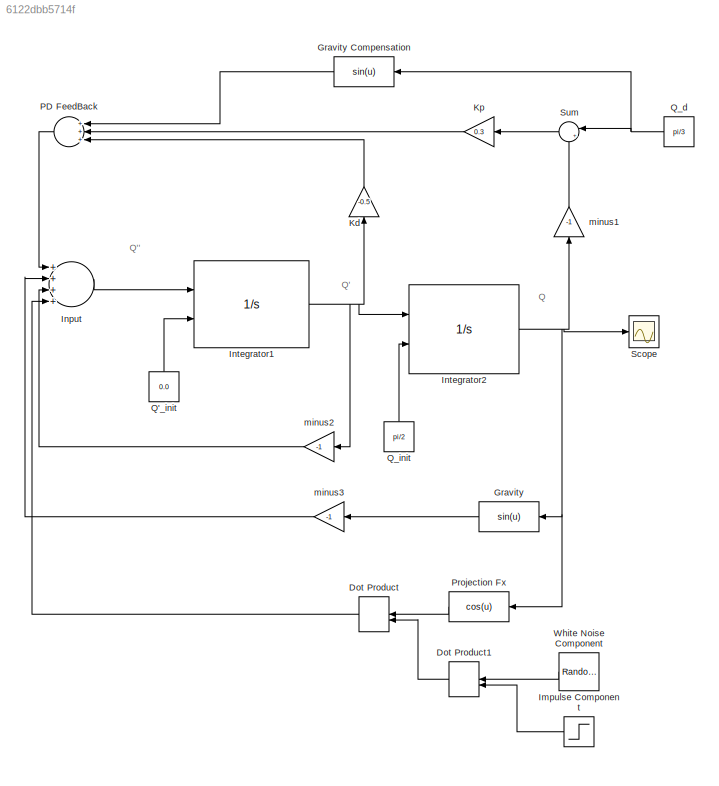
MODEL slx_6122dbb5714f
KIND model
CONFIG AbsTol = auto
CONFIG EnableMultiTasking = off
CONFIG FixedStep = auto
CONFIG MaxStep = auto
CONFIG MinStep = auto
CONFIG RelTol = 1e-3
CONFIG SampleTimeConstraint = Unconstrained
CONFIG Solver = VariableStepAuto
CONFIG SolverName = VariableStepAuto
CONFIG StartTime = 0.0
CONFIG StopTime = 20.0
BLOCK [DotProduct] Dot Product
  OutDataTypeStr = Inherit: Inherit via internal rule
BLOCK [DotProduct] Dot Product1
  OutDataTypeStr = Inherit: Inherit via internal rule
BLOCK [Fcn] Gravity 
  Expr = sin(u)
BLOCK [Fcn] Gravity Compensation
  Expr = sin(u)
BLOCK [Step] Impulse Component
  After = 0
  Before = 5
  SampleTime = 0
  Time = 5
BLOCK [Sum] Input
  InputSameDT = off
  Inputs = ++++
  OutDataTypeStr = Inherit: Inherit via internal rule
  Ports = [4, 1]
  SaturateOnIntegerOverflow = off
BLOCK [Integrator] Integrator1
  InitialConditionSource = external
  Ports = [2, 1]
BLOCK [Integrator] Integrator2 
  InitialConditionSource = external
  Ports = [2, 1]
BLOCK [Gain] Kd
  Gain = -0.5
  OutDataTypeStr = Inherit: Inherit via internal rule
  ParamDataTypeStr = Inherit: Inherit via internal rule
  SaturateOnIntegerOverflow = off
BLOCK [Gain] Kp
  Gain = 0.3
  OutDataTypeStr = Inherit: Inherit via internal rule
  ParamDataTypeStr = Inherit: Inherit via internal rule
  SaturateOnIntegerOverflow = off
BLOCK [Sum] PD FeedBack
  InputSameDT = off
  Inputs = +++
  OutDataTypeStr = Inherit: Inherit via internal rule
  Ports = [3, 1]
  SaturateOnIntegerOverflow = off
BLOCK [Fcn] Projection Fx
  Expr = cos(u)
BLOCK [Constant] Q'_init
  Value = 0.0
BLOCK [Constant] Q_d
  Value = pi/3
BLOCK [Constant] Q_init
  Value = pi/2
BLOCK [Scope] Scope
  NumInputPorts = 1
  Ports = [1]
  ScopeSpecificationString = Simulink.scopes.TimeScopeBlockCfg('CurrentConfiguration', extmgr.ConfigurationSet(extmgr.Configuration('Core','General UI',true),extmgr.Configuration('Core','Source UI',true),extmgr.Configuration('Sources','WiredSimulink',true),extmgr.Configuration('Visuals','Time Domain',true,'SerializedDisplays',{struct('MinYLimReal','0.96145','MaxYLimReal','1.79806','YLabelReal','','MinYLimMag','0.96145','MaxYL...<+1357ch>
BLOCK [Sum] Sum
  IconShape = round
  InputSameDT = off
  Inputs = |++
  OutDataTypeStr = Inherit: Inherit via internal rule
  Ports = [2, 1]
  SaturateOnIntegerOverflow = off
BLOCK [Reference] White Noise Component  REF=dspsrcs4/Random
Source
  Ports = [0, 1]
  SourceBlock = dspsrcs4/Random\nSource
  SourceProductBaseCode = DS
  SourceProductName = DSP System Toolbox
  SourceType = Random Source
  UserDataPersistent = on
BLOCK [Gain] minus1
  Gain = -1
  OutDataTypeStr = Inherit: Inherit via internal rule
  ParamDataTypeStr = Inherit: Inherit via internal rule
  SaturateOnIntegerOverflow = off
BLOCK [Gain] minus2
  Gain = -1
  OutDataTypeStr = Inherit: Inherit via internal rule
  ParamDataTypeStr = Inherit: Inherit via internal rule
  SaturateOnIntegerOverflow = off
BLOCK [Gain] minus3
  Gain = -1
  OutDataTypeStr = Inherit: Inherit via internal rule
  ParamDataTypeStr = Inherit: Inherit via internal rule
  SaturateOnIntegerOverflow = off
ANNOTATION (root): Q
ANNOTATION (root): Q'
ANNOTATION (root): Q''
LINE Dot Product1:1 -> Dot Product:2
LINE Dot Product:1 -> Input:4
LINE Gravity :1 -> minus3:1
LINE Gravity Compensation:1 -> PD FeedBack:1
LINE Impulse Component:1 -> Dot Product1:2
LINE Input:1 -> Integrator1:1
NET Integrator1:1 -> Integrator2 :1, Kd:1, minus2:1
NET Integrator2 :1 -> Gravity :1, Projection Fx:1, Scope:1, minus1:1
LINE Kd:1 -> PD FeedBack:3
LINE Kp:1 -> PD FeedBack:2
LINE PD FeedBack:1 -> Input:1
LINE Projection Fx:1 -> Dot Product:1
LINE Q'_init:1 -> Integrator1:2
NET Q_d:1 -> Gravity Compensation:1, Sum:1
LINE Q_init:1 -> Integrator2 :2
LINE Sum:1 -> Kp:1
LINE White Noise Component:1 -> Dot Product1:1
LINE minus1:1 -> Sum:2
LINE minus2:1 -> Input:3
LINE minus3:1 -> Input:2
note: NET lines group one-source signal fan-out (src -> all destinations, sorted); 1:1 wires keep LINE
